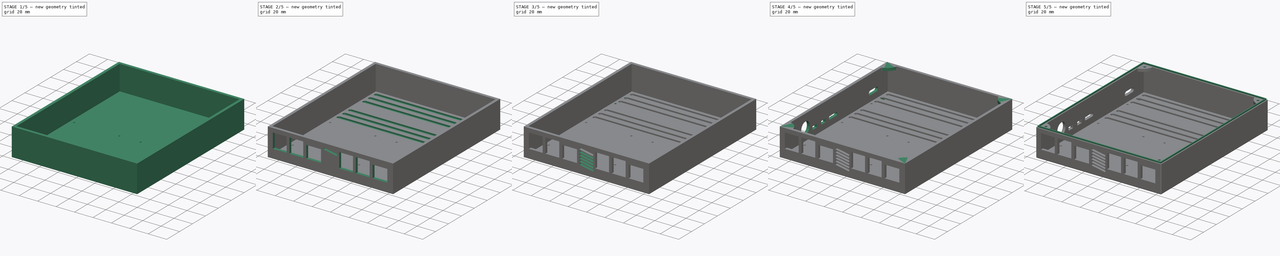
[diagram: build sequence overview — one tinted view per stage of 5, left to right]
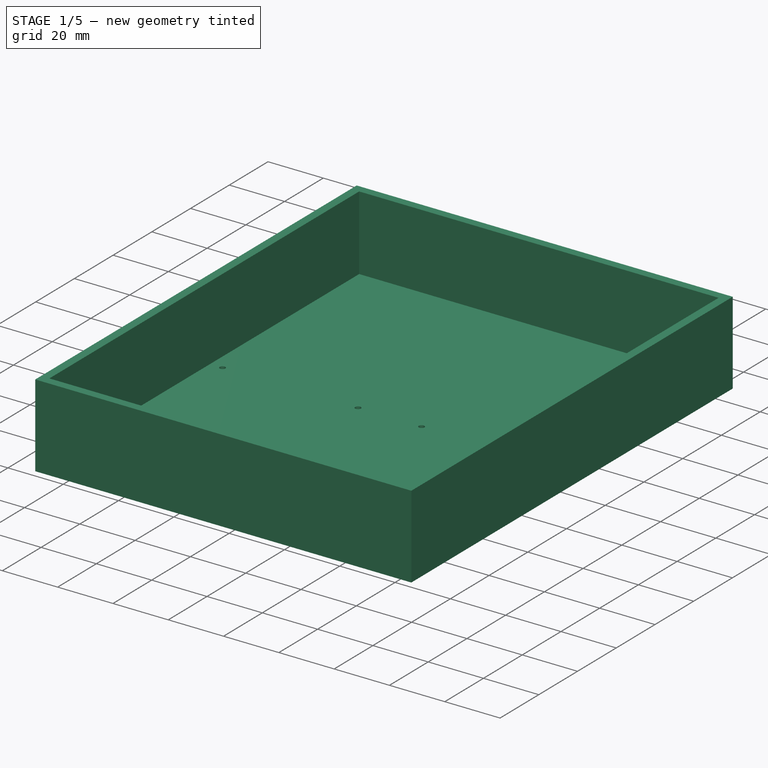
[diagram: stage 1 of 5 — iso view after this stage's code; geometry added in this stage tinted green]
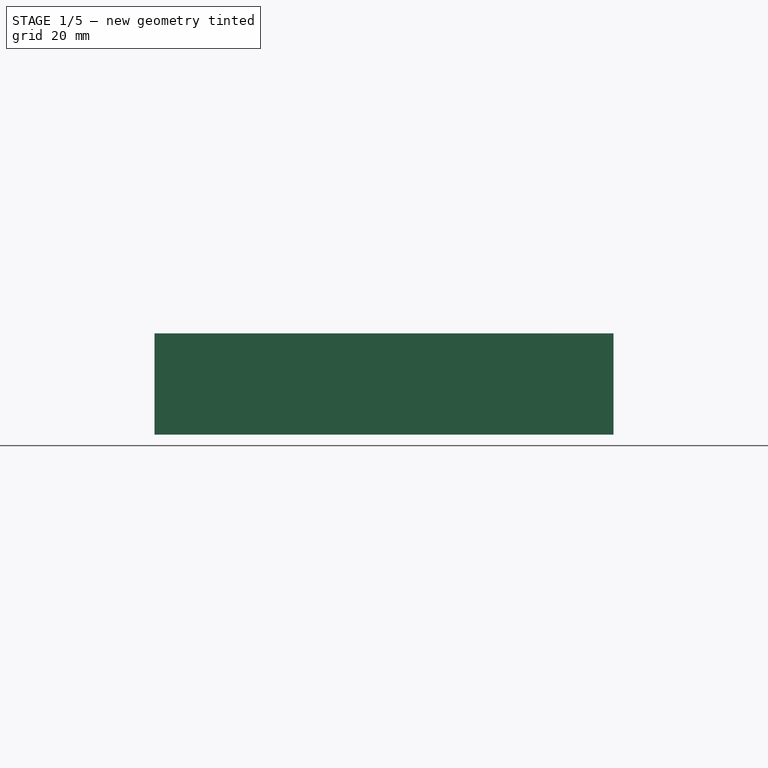
[diagram: stage 1 of 5 — front view after this stage's code; geometry added in this stage tinted green]
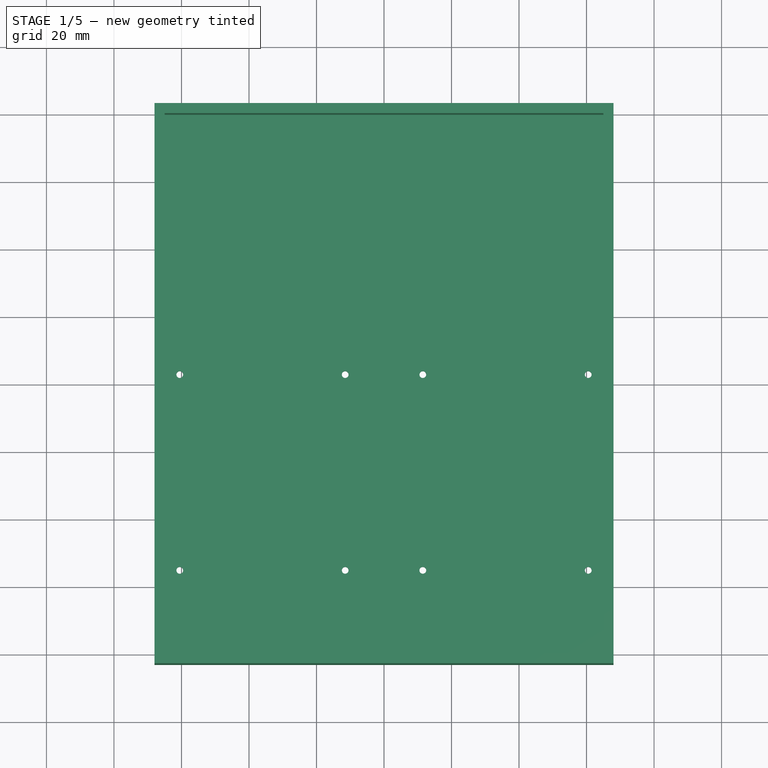
[diagram: stage 1 of 5 — top view after this stage's code; geometry added in this stage tinted green]
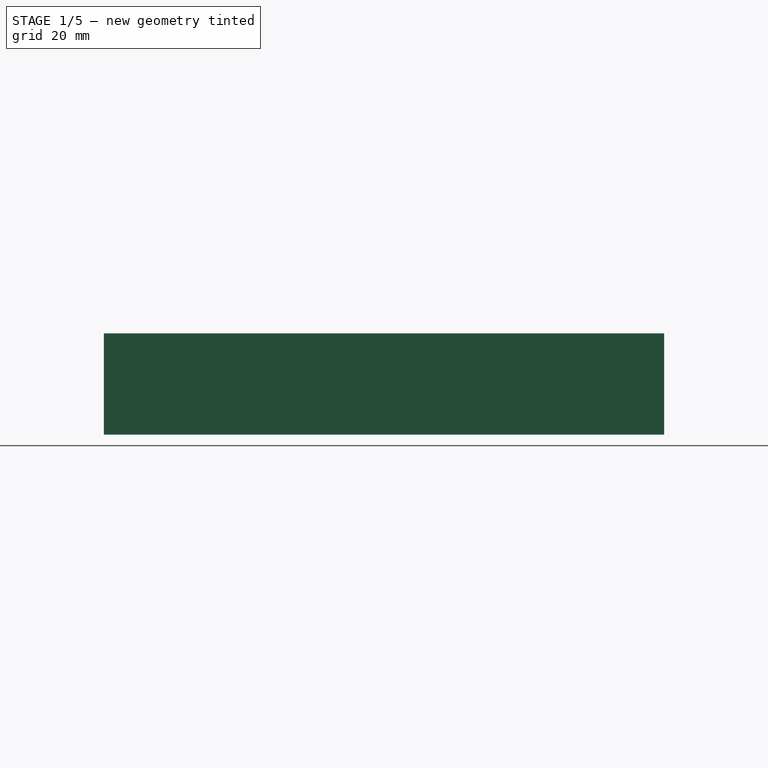
[diagram: stage 1 of 5 — right view after this stage's code; geometry added in this stage tinted green]
FCSTD DOCUMENT  (FreeCAD 0.19R24366 (Git))
Label: DualRPIEnclosure_Bottom
License: All rights reserved
LicenseURL: http://en.wikipedia.org/wiki/All_rights_reserved
objects: Sketcher::SketchObject×12, PartDesign::Pocket×9, PartDesign::Pad×3, PartDesign::LinearPattern×2, PartDesign::Fillet×1, PartDesign::Body×1
note: 41 computed .brp shape members not serialized (recipe doc carries the construction recipe); baked Part::Feature solids carry a one-line shape summary decoded from their .brp

FEATURE [Sketcher::SketchObject] Sketch  label="MainFrame"
  AttachmentOffset = pos=(0,0,30) rot=(0,0,1;0rad)
  FullyConstrained = true
  MapMode = 5
  Placement = pos=(0,0,30) rot=(0,0,1;0rad)
  Support = -> [XY_Plane]
  sketch-geometry (4):
    g0: LineSegment StartX=-65 StartY=80 StartZ=0 EndX=65 EndY=80 EndZ=0
    g1: LineSegment StartX=65 StartY=80 StartZ=0 EndX=65 EndY=-80 EndZ=0
    g2: LineSegment StartX=65 StartY=-80 StartZ=0 EndX=-65 EndY=-80 EndZ=0
    g3: LineSegment StartX=-65 StartY=-80 StartZ=0 EndX=-65 EndY=80 EndZ=0
  constraints (11):
    c: Coincident(g0,g1)
    c: Coincident(g1,g2)
    c: Coincident(g2,g3)
    c: Coincident(g3,g0)
    c: Horizontal(g0)
    c: Horizontal(g2)
    c: Vertical(g1)
    c: Vertical(g3)
    c: DistanceX(g2,g2) = 130
    c: DistanceY(g1,g1) = 160
    c: Symmetric(g0,g1,g-1)
FEATURE [Sketcher::SketchObject] Sketch001  label="EnclosureWall"
  ExternalGeometry = -> [Sketch]
  FullyConstrained = true
  MapMode = 5
  Support = -> [XY_Plane]
  sketch-geometry (4):
    g0: LineSegment StartX=-68 StartY=83 StartZ=0 EndX=68 EndY=83 EndZ=0
    g1: LineSegment StartX=68 StartY=83 StartZ=0 EndX=68 EndY=-83 EndZ=0
    g2: LineSegment StartX=68 StartY=-83 StartZ=0 EndX=-68 EndY=-83 EndZ=0
    g3: LineSegment StartX=-68 StartY=-83 StartZ=0 EndX=-68 EndY=83 EndZ=0
  constraints (12):
    c: Coincident(g0,g1)
    c: Coincident(g1,g2)
    c: Coincident(g2,g3)
    c: Coincident(g3,g0)
    c: Horizontal(g0)
    c: Horizontal(g2)
    c: Vertical(g1)
    c: Vertical(g3)
    c: DistanceX(g-3,g0) = 3
    c: DistanceY(g-3,g0) = 3
    c: DistanceX(g0,g-4) = 3
    c: DistanceY(g2,g-4) = 3
FEATURE [PartDesign::Pad] Pad  label="PadWall"
  Direction = (1,1,1)
  Length = 30
  Length2 = 100
  Profile = -> Sketch001
  Type = 0
FEATURE [PartDesign::Pocket] Pocket  label="MainPocket"
  BaseFeature = -> Pad
  Length = 27
  Length2 = 100
  Profile = -> Sketch
  Type = 0
FEATURE [Sketcher::SketchObject] Sketch002  label="RPIMountHole"
  ExternalGeometry = -> [Pocket]
  FullyConstrained = true
  MapMode = 5
  Placement = pos=(0,0,3) rot=(0,0,1;0rad)
  Support = -> [Pocket]
  sketch-geometry (8):
    g0: Circle CenterX=-60.5 CenterY=-55 CenterZ=0 NormalX=0 NormalY=0 NormalZ=1 AngleXU=0 Radius=1
    g1: Circle CenterX=-11.5 CenterY=-55 CenterZ=0 NormalX=0 NormalY=0 NormalZ=1 AngleXU=0 Radius=1
    g2: Circle CenterX=-60.5 CenterY=3 CenterZ=0 NormalX=0 NormalY=0 NormalZ=1 AngleXU=0 Radius=1
    g3: Circle CenterX=-11.5 CenterY=3 CenterZ=0 NormalX=0 NormalY=0 NormalZ=1 AngleXU=0 Radius=1
    g4: Circle CenterX=11.5 CenterY=-55 CenterZ=0 NormalX=0 NormalY=0 NormalZ=1 AngleXU=0 Radius=1
    g5: Circle CenterX=60.5 CenterY=-55 CenterZ=0 NormalX=0 NormalY=0 NormalZ=1 AngleXU=0 Radius=1
    g6: Circle CenterX=60.5 CenterY=3 CenterZ=0 NormalX=0 NormalY=0 NormalZ=1 AngleXU=0 Radius=1
    g7: Circle CenterX=11.5 CenterY=3 CenterZ=0 NormalX=0 NormalY=0 NormalZ=1 AngleXU=0 Radius=1
  constraints (24):
    c: DistanceX(g-3,g0) = 4.5
    c: DistanceY(g-3,g0) = 25
    c: DistanceX(g0,g1) = 49
    c: Horizontal(g0,g1)
    c: Radius(g0) = 1
    c: Radius(g1) = 1
    c: DistanceY(g0,g2) = 58
    c: Vertical(g2,g0)
    c: DistanceY(g1,g3) = 58
    c: Radius(g2) = 1
    c: Radius(g3) = 1
    c: DistanceX(g2,g3) = 49
    c: DistanceY(g-4,g4) = 25
    c: DistanceX(g4,g5) = 49
    c: DistanceX(g5,g-4) = 4.5
    c: Radius(g4) = 1
    c: Radius(g5) = 1
    c: Horizontal(g5,g4)
    c: DistanceY(g5,g6) = 58
    c: Vertical(g5,g6)
    c: Radius(g6) = 1
    c: DistanceX(g7,g6) = 49
    c: Radius(g7) = 1
    c: Horizontal(g7,g6)
FEATURE [PartDesign::Pocket] Pocket001  label="RPIMountHole001"
  BaseFeature = -> Pocket
  Length = 5
  Length2 = 100
  Profile = -> Sketch002
  Type = 1
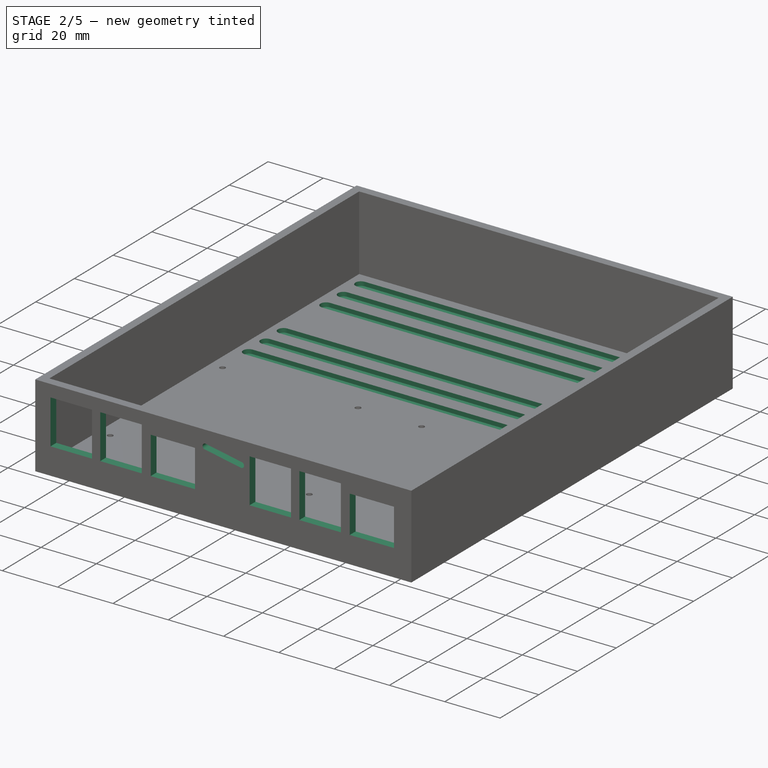
[diagram: stage 2 of 5 — iso view after this stage's code; geometry added in this stage tinted green]
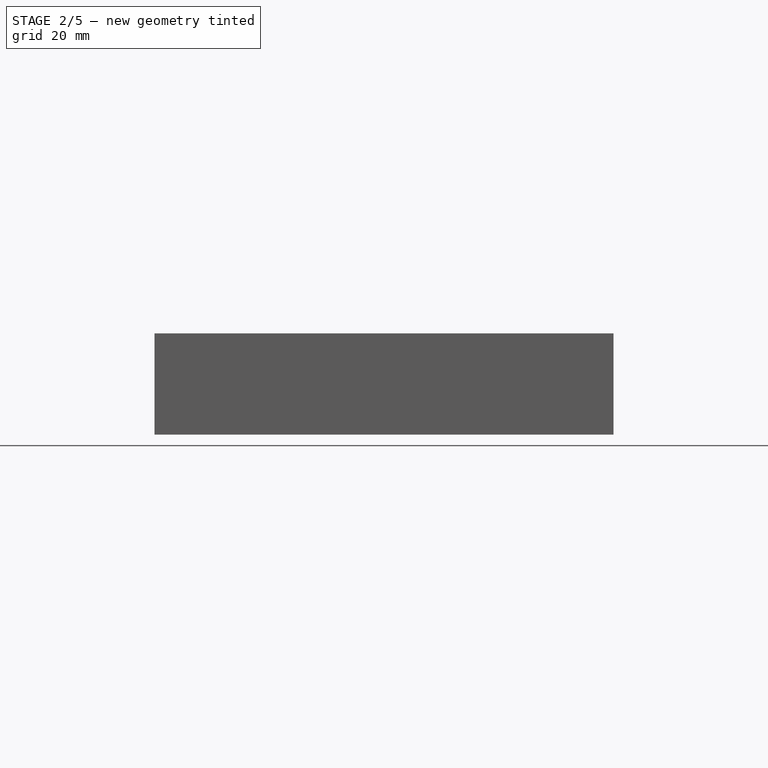
[diagram: stage 2 of 5 — front view after this stage's code; geometry added in this stage tinted green]
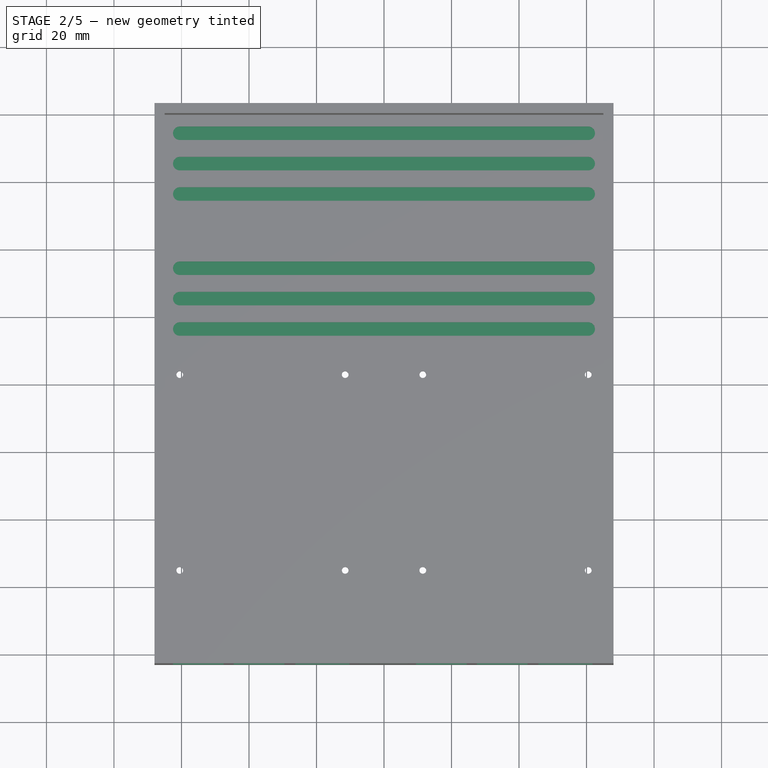
[diagram: stage 2 of 5 — top view after this stage's code; geometry added in this stage tinted green]
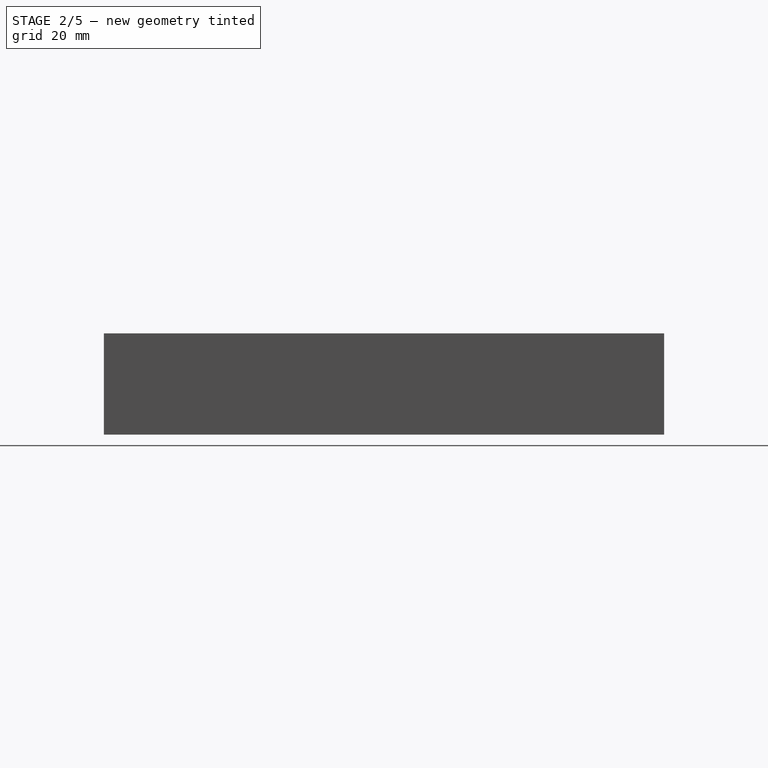
[diagram: stage 2 of 5 — right view after this stage's code; geometry added in this stage tinted green]
FEATURE [Sketcher::SketchObject] Sketch003  label="AuxMountDip"
  ExternalGeometry = -> [Pocket001]
  FullyConstrained = true
  MapMode = 5
  Placement = pos=(0,0,3) rot=(0,0,1;0rad)
  Support = -> [Pocket001]
  sketch-geometry (24):
    g0: ArcOfCircle CenterX=-60.5 CenterY=16.5 CenterZ=0 NormalX=0 NormalY=0 NormalZ=1 AngleXU=0 Radius=2 StartAngle=1.5708 EndAngle=4.71239
    g1: ArcOfCircle CenterX=60.5 CenterY=16.5 CenterZ=0 NormalX=0 NormalY=0 NormalZ=1 AngleXU=0 Radius=2 StartAngle=4.71239 EndAngle=7.85398
    g2: LineSegment StartX=-60.5 StartY=14.5 StartZ=0 EndX=60.5 EndY=14.5 EndZ=0
    g3: LineSegment StartX=-60.5 StartY=18.5 StartZ=0 EndX=60.5 EndY=18.5 EndZ=0
    g4: ArcOfCircle CenterX=-60.5 CenterY=65.5 CenterZ=0 NormalX=0 NormalY=0 NormalZ=1 AngleXU=0 Radius=2 StartAngle=1.5708 EndAngle=4.71239
    g5: ArcOfCircle CenterX=60.5 CenterY=65.5 CenterZ=0 NormalX=0 NormalY=0 NormalZ=1 AngleXU=0 Radius=2 StartAngle=4.71239 EndAngle=7.85398
    g6: LineSegment StartX=-60.5 StartY=63.5 StartZ=0 EndX=60.5 EndY=63.5 EndZ=0
    g7: LineSegment StartX=-60.5 StartY=67.5 StartZ=0 EndX=60.5 EndY=67.5 EndZ=0
    g8: ArcOfCircle CenterX=-60.5 CenterY=74.5 CenterZ=0 NormalX=0 NormalY=0 NormalZ=1 AngleXU=0 Radius=2 StartAngle=1.5708 EndAngle=4.71239
    g9: ArcOfCircle CenterX=60.5 CenterY=74.5 CenterZ=0 NormalX=0 NormalY=0 NormalZ=1 AngleXU=0 Radius=2 StartAngle=4.71239 EndAngle=7.85398
    g10: LineSegment StartX=-60.5 StartY=72.5 StartZ=0 EndX=60.5 EndY=72.5 EndZ=0
    g11: LineSegment StartX=-60.5 StartY=76.5 StartZ=0 EndX=60.5 EndY=76.5 EndZ=0
    g12: ArcOfCircle CenterX=-60.5 CenterY=25.5 CenterZ=0 NormalX=0 NormalY=0 NormalZ=1 AngleXU=0 Radius=2 StartAngle=1.5708 EndAngle=4.71239
    g13: ArcOfCircle CenterX=60.5 CenterY=25.5 CenterZ=0 NormalX=0 NormalY=0 NormalZ=1 AngleXU=0 Radius=2 StartAngle=4.71239 EndAngle=7.85398
    g14: LineSegment StartX=-60.5 StartY=23.5 StartZ=0 EndX=60.5 EndY=23.5 EndZ=0
    g15: LineSegment StartX=-60.5 StartY=27.5 StartZ=0 EndX=60.5 EndY=27.5 EndZ=0
    g16: ArcOfCircle CenterX=-60.5 CenterY=34.5 CenterZ=0 NormalX=0 NormalY=0 NormalZ=1 AngleXU=0 Radius=2 StartAngle=1.5708 EndAngle=4.71239
    g17: ArcOfCircle CenterX=60.5 CenterY=34.5 CenterZ=0 NormalX=0 NormalY=0 NormalZ=1 AngleXU=0 Radius=2 StartAngle=4.71239 EndAngle=7.85398
    g18: LineSegment StartX=-60.5 StartY=32.5 StartZ=0 EndX=60.5 EndY=32.5 EndZ=0
    g19: LineSegment StartX=-60.5 StartY=36.5 StartZ=0 EndX=60.5 EndY=36.5 EndZ=0
    g20: ArcOfCircle CenterX=-60.5 CenterY=56.5 CenterZ=0 NormalX=0 NormalY=0 NormalZ=1 AngleXU=0 Radius=2 StartAngle=1.5708 EndAngle=4.71239
    g21: ArcOfCircle CenterX=60.5 CenterY=56.5 CenterZ=0 NormalX=0 NormalY=0 NormalZ=1 AngleXU=0 Radius=2 StartAngle=4.71239 EndAngle=7.85398
    g22: LineSegment StartX=-60.5 StartY=54.5 StartZ=0 EndX=60.5 EndY=54.5 EndZ=0
    g23: LineSegment StartX=-60.5 StartY=58.5 StartZ=0 EndX=60.5 EndY=58.5 EndZ=0
  constraints (61):
    c: Tangent(g0,g3) = 1.5708
    c: Tangent(g0,g2) = -1.5708
    c: Tangent(g2,g1) = -1.5708
    c: Tangent(g3,g1) = 1.5708
    c: Horizontal(g2)
    c: Equal(g0,g1)
    c: DistanceY(g-5,g0) = 13.5
    c: Vertical(g0,g-5)
    c: Vertical(g1,g-6)
    c: Radius(g0) = 2
    c: Tangent(g4,g7) = 1.5708
    c: Tangent(g4,g6) = -1.5708
    c: Tangent(g6,g5) = -1.5708
    c: Tangent(g7,g5) = 1.5708
    c: Horizontal(g6)
    c: Equal(g4,g5)
    c: Vertical(g4,g0)
    c: Vertical(g5,g1)
    c: Radius(g4) = 2
    c: DistanceY(g0,g4) = 49
    c: Tangent(g8,g11) = 1.5708
    c: Tangent(g8,g10) = -1.5708
    c: Tangent(g10,g9) = -1.5708
    c: Tangent(g11,g9) = 1.5708
    c: Horizontal(g10)
    c: Equal(g8,g9)
    c: Vertical(g8,g4)
    c: Vertical(g9,g5)
    c: Radius(g8) = 2
    c: DistanceY(g0,g8) = 58
    c: DistanceY(g9,g-4) = 3.5
    c: Tangent(g12,g15) = 1.5708
    c: Tangent(g12,g14) = -1.5708
    c: Tangent(g14,g13) = -1.5708
    c: Tangent(g15,g13) = 1.5708
    c: Horizontal(g14)
    c: Equal(g12,g13)
    c: Tangent(g16,g19) = 1.5708
    c: Tangent(g16,g18) = -1.5708
    c: Tangent(g18,g17) = -1.5708
    c: Tangent(g19,g17) = 1.5708
    c: Horizontal(g18)
    c: Equal(g16,g17)
    c: Tangent(g20,g23) = 1.5708
    c: Tangent(g20,g22) = -1.5708
    c: Tangent(g22,g21) = -1.5708
    c: Tangent(g23,g21) = 1.5708
    c: Horizontal(g22)
    c: Equal(g20,g21)
    c: Vertical(g0,g12)
    c: Vertical(g12,g16)
    c: Vertical(g16,g20)
    c: Vertical(g21,g17)
    c: Vertical(g17,g13)
    c: Equal(g20,g16)
    c: Equal(g20,g12)
    c: Radius(g20) = 2
    c: DistanceY(g1,g13) = 9
    c: DistanceY(g13,g17) = 9
    c: DistanceY(g21,g5) = 9
    c: Vertical(g5,g21)
FEATURE [PartDesign::Pocket] Pocket002  label="PocketAuxMountDip"
  BaseFeature = -> Pocket001
  Length = 1.5
  Length2 = 100
  Profile = -> Sketch003
  Type = 0
FEATURE [Sketcher::SketchObject] Sketch004  label="ConnectorSide"
  ExternalGeometry = -> [Pocket002]
  FullyConstrained = true
  MapMode = 5
  Placement = pos=(0,-83,0) rot=(1,0,0;1.5708rad)
  Support = -> [Pocket002]
  sketch-geometry (38):
    g0: LineSegment StartX=-65 StartY=9.6 StartZ=0 EndX=65 EndY=9.6 EndZ=0
    g1: LineSegment StartX=65 StartY=9.6 StartZ=0 EndX=65 EndY=8 EndZ=0
    g2: LineSegment StartX=65 StartY=8 StartZ=0 EndX=-65 EndY=8 EndZ=0
    g3: LineSegment StartX=-65 StartY=8 StartZ=0 EndX=-65 EndY=9.6 EndZ=0
    g4: LineSegment StartX=-62.5 StartY=25.6 StartZ=0 EndX=-47.5 EndY=25.6 EndZ=0
    g5: LineSegment StartX=-47.5 StartY=25.6 StartZ=0 EndX=-47.5 EndY=9.6 EndZ=0
    g6: LineSegment StartX=-47.5 StartY=9.6 StartZ=0 EndX=-62.5 EndY=9.6 EndZ=0
    g7: LineSegment StartX=-62.5 StartY=9.6 StartZ=0 EndX=-62.5 EndY=25.6 EndZ=0
    g8: LineSegment StartX=-29.5 StartY=25.6 StartZ=0 EndX=-44.5 EndY=25.6 EndZ=0
    g9: LineSegment StartX=-44.5 StartY=25.6 StartZ=0 EndX=-44.5 EndY=9.6 EndZ=0
    g10: LineSegment StartX=-44.5 StartY=9.6 StartZ=0 EndX=-29.5 EndY=9.6 EndZ=0
    g11: LineSegment StartX=-29.5 StartY=9.6 StartZ=0 EndX=-29.5 EndY=25.6 EndZ=0
    g12: LineSegment StartX=-26.25 StartY=23.1 StartZ=0 EndX=-10.25 EndY=23.1 EndZ=0
    g13: LineSegment StartX=-10.25 StartY=23.1 StartZ=0 EndX=-10.25 EndY=9.6 EndZ=0
    g14: LineSegment StartX=-10.25 StartY=9.6 StartZ=0 EndX=-26.25 EndY=9.6 EndZ=0
    g15: LineSegment StartX=-26.25 StartY=9.6 StartZ=0 EndX=-26.25 EndY=23.1 EndZ=0
    g16: LineSegment StartX=9.5 StartY=25.6 StartZ=0 EndX=24.5 EndY=25.6 EndZ=0
    g17: LineSegment StartX=24.5 StartY=25.6 StartZ=0 EndX=24.5 EndY=9.6 EndZ=0
    g18: LineSegment StartX=24.5 StartY=9.6 StartZ=0 EndX=9.5 EndY=9.6 EndZ=0
    g19: LineSegment StartX=9.5 StartY=9.6 StartZ=0 EndX=9.5 EndY=25.6 EndZ=0
    g20: LineSegment StartX=42.5 StartY=25.6 StartZ=0 EndX=27.5 EndY=25.6 EndZ=0
    g21: LineSegment StartX=27.5 StartY=25.6 StartZ=0 EndX=27.5 EndY=9.6 EndZ=0
    g22: LineSegment StartX=27.5 StartY=9.6 StartZ=0 EndX=42.5 EndY=9.6 EndZ=0
    g23: LineSegment StartX=42.5 StartY=9.6 StartZ=0 EndX=42.5 EndY=25.6 EndZ=0
    g24: LineSegment StartX=45.75 StartY=23.1 StartZ=0 EndX=61.75 EndY=23.1 EndZ=0
    g25: LineSegment StartX=61.75 StartY=23.1 StartZ=0 EndX=61.75 EndY=9.6 EndZ=0
    g26: LineSegment StartX=61.75 StartY=9.6 StartZ=0 EndX=45.75 EndY=9.6 EndZ=0
    g27: LineSegment StartX=45.75 StartY=9.6 StartZ=0 EndX=45.75 EndY=23.1 EndZ=0
    g28: GeomPoint X=-55 Y=9.6 Z=0
    g29: GeomPoint X=-37 Y=9.6 Z=0
    g30: GeomPoint X=-18.25 Y=9.6 Z=0
    g31: GeomPoint X=17 Y=9.6 Z=0
    g32: GeomPoint X=35 Y=9.6 Z=0
    g33: GeomPoint X=53.75 Y=9.6 Z=0
    g34: GeomPoint X=-60.5 Y=3 Z=0
    g35: GeomPoint X=-64 Y=9.6 Z=0
    g36: GeomPoint X=11.5 Y=3 Z=0
    g37: GeomPoint X=8 Y=9.6 Z=0
  constraints (96):
    c: Coincident(g0,g1)
    c: Coincident(g1,g2)
    c: Coincident(g2,g3)
    c: Coincident(g3,g0)
    c: Horizontal(g0)
    c: Horizontal(g2)
    c: Vertical(g1)
    c: Vertical(g3)
    c: DistanceY(g3,g3) = 1.6
    c: PointOnObject(g1,g-4)
    c: PointOnObject(g2,g-3)
    c: DistanceY(g-3,g2) = 5
    c: Coincident(g4,g5)
    c: Coincident(g5,g6)
    c: Coincident(g6,g7)
    c: Coincident(g7,g4)
    c: Horizontal(g4)
    c: Horizontal(g6)
    c: Vertical(g5)
    c: Vertical(g7)
    c: Coincident(g8,g9)
    c: Coincident(g9,g10)
    c: Coincident(g10,g11)
    c: Coincident(g11,g8)
    c: Horizontal(g8)
    c: Horizontal(g10)
    c: Vertical(g9)
    c: Vertical(g11)
    c: Coincident(g12,g13)
    c: Coincident(g13,g14)
    c: Coincident(g14,g15)
    c: Coincident(g15,g12)
    c: Horizontal(g12)
    c: Horizontal(g14)
    c: Vertical(g13)
    c: Vertical(g15)
    c: Coincident(g16,g17)
    c: Coincident(g17,g18)
    c: Coincident(g18,g19)
    c: Coincident(g19,g16)
    c: Horizontal(g16)
    c: Horizontal(g18)
    c: Vertical(g17)
    c: Vertical(g19)
    c: Coincident(g20,g21)
    c: Coincident(g21,g22)
    c: Coincident(g22,g23)
    c: Coincident(g23,g20)
    c: Horizontal(g20)
    c: Horizontal(g22)
    c: Vertical(g21)
    c: Vertical(g23)
    c: Coincident(g24,g25)
    c: Coincident(g25,g26)
    c: Coincident(g26,g27)
    c: Coincident(g27,g24)
    c: Horizontal(g24)
    c: Horizontal(g26)
    c: Vertical(g25)
    c: Vertical(g27)
    c: PointOnObject(g28,g0)
    c: PointOnObject(g29,g0)
    c: PointOnObject(g30,g0)
    c: PointOnObject(g31,g0)
    c: PointOnObject(g32,g0)
    c: PointOnObject(g33,g0)
    c: Symmetric(g-5,g-5,g34)
    c: PointOnObject(g35,g0)
    c: DistanceX(g35,g34) = 3.5
    c: DistanceX(g35,g28) = 9
    c: DistanceX(g35,g29) = 27
    c: DistanceX(g35,g30) = 45.75
    c: Symmetric(g6,g5,g28)
    c: Symmetric(g10,g9,g29)
    c: Symmetric(g14,g13,g30)
    c: DistanceY(g7,g7) = 16
    c: DistanceX(g4,g4) = 15
    c: Equal(g9,g5)
    c: Equal(g4,g8)
    c: DistanceX(g12,g12) = 16
    c: DistanceY(g13,g13) = 13.5
    c: Symmetric(g-7,g-7,g36)
    c: PointOnObject(g37,g0)
    c: DistanceX(g37,g36) = 3.5
    c: Symmetric(g17,g18,g31)
    c: DistanceX(g37,g31) = 9
    c: Symmetric(g22,g21,g32)
    c: DistanceX(g37,g32) = 27
    c: DistanceX(g37,g33) = 45.75
    c: Equal(g17,g5)
    c: Equal(g16,g4)
    c: Equal(g21,g11)
    c: Equal(g20,g8)
    c: Symmetric(g25,g26,g33)
    c: Equal(g27,g15)
    c: Equal(g24,g12)
FEATURE [PartDesign::Pocket] Pocket003  label="PocketConnector"
  BaseFeature = -> Pocket002
  Length = 0
  Length2 = 100
  Profile = -> Sketch004
  Type = 2
FEATURE [Sketcher::SketchObject] Sketch005  label="VentConnectorSide"
  ExternalGeometry = -> [Pocket003]
  FullyConstrained = true
  MapMode = 5
  Placement = pos=(0,-83,0) rot=(1,0,0;1.5708rad)
  Support = -> [Pocket003]
  sketch-geometry (9):
    g0: LineSegment StartX=-6.5 StartY=26 StartZ=0 EndX=6.5 EndY=26 EndZ=0
    g1: LineSegment StartX=6.5 StartY=26 StartZ=0 EndX=6.5 EndY=6 EndZ=0
    g2: LineSegment StartX=6.5 StartY=6 StartZ=0 EndX=-6.5 EndY=6 EndZ=0
    g3: LineSegment StartX=-6.5 StartY=6 StartZ=0 EndX=-6.5 EndY=26 EndZ=0
    g4: GeomPoint X=0 Y=26 Z=0
    g5: LineSegment StartX=-6.5 StartY=25.5 StartZ=0 EndX=6.5 EndY=23 EndZ=0
    g6: LineSegment StartX=6.5 StartY=21 StartZ=0 EndX=-6.5 EndY=23.5 EndZ=0
    g7: ArcOfCircle CenterX=-6.5 CenterY=24.5 CenterZ=0 NormalX=0 NormalY=0 NormalZ=1 AngleXU=0 Radius=1 StartAngle=1.5708 EndAngle=4.71239
    g8: ArcOfCircle CenterX=6.49999 CenterY=22 CenterZ=0 NormalX=0 NormalY=0 NormalZ=1 AngleXU=0 Radius=1 StartAngle=4.71239 EndAngle=7.85398
  constraints (27):
    c: Coincident(g0,g1)
    c: Coincident(g1,g2)
    c: Coincident(g2,g3)
    c: Coincident(g3,g0)
    c: Horizontal(g0)
    c: Horizontal(g2)
    c: Vertical(g1)
    c: Vertical(g3)
    c: Symmetric(g0,g0,g4)
    c: PointOnObject(g4,g-2)
    c: DistanceX(g0,g0) = 13
    c: DistanceY(g0,g-4) = 4
    c: DistanceY(g3,g3) = 20
    c: PointOnObject(g5,g3)
    c: PointOnObject(g5,g1)
    c: PointOnObject(g6,g1)
    c: PointOnObject(g6,g3)
    c: Coincident(g7,g6)
    c: Coincident(g7,g5)
    c: Coincident(g8,g6)
    c: Coincident(g8,g5)
    c: DistanceY(g5,g0) = 0.5
    c: Radius(g7) = 1
    c: Radius(g8) = 1
    c: DistanceY(g5,g0) = 3
    c: DistanceY(g6,g5) = 2
    c: DistanceY(g6,g5) = 2
FEATURE [PartDesign::Pocket] Pocket004  label="VentFront"
  BaseFeature = -> Pocket003
  Length = 5
  Length2 = 100
  Profile = -> Sketch005
  Type = 2
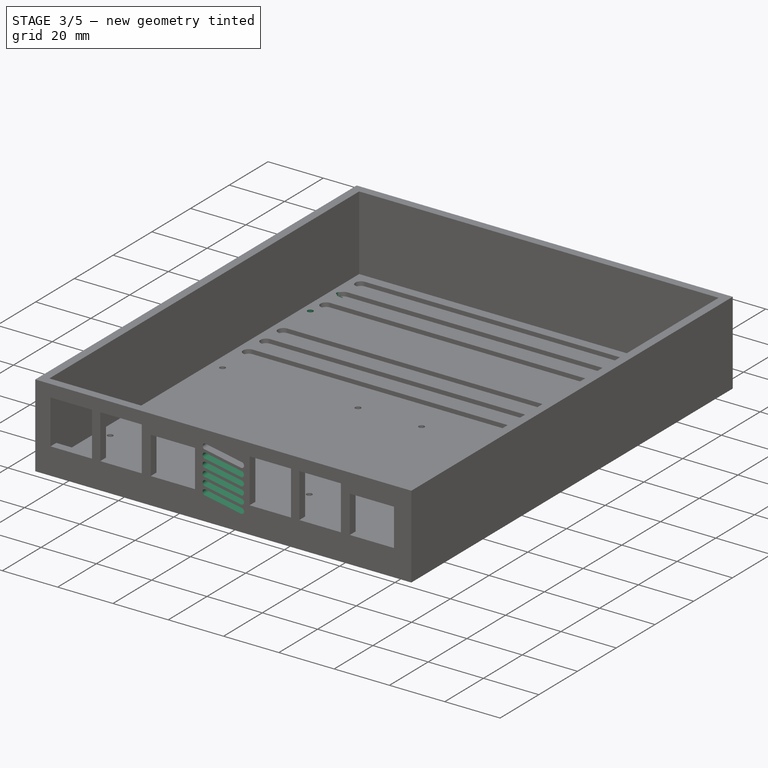
[diagram: stage 3 of 5 — iso view after this stage's code; geometry added in this stage tinted green]
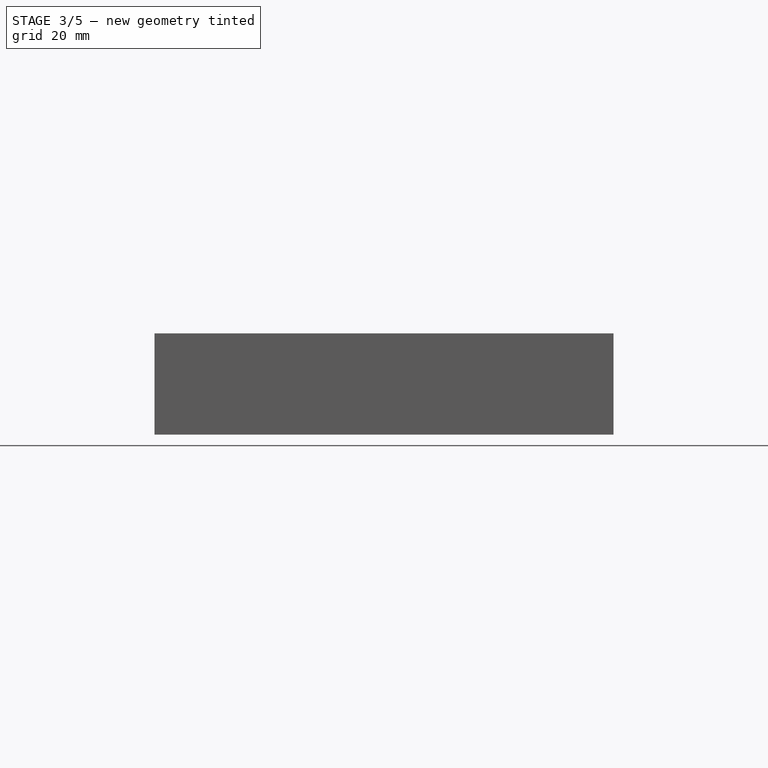
[diagram: stage 3 of 5 — front view after this stage's code; geometry added in this stage tinted green]
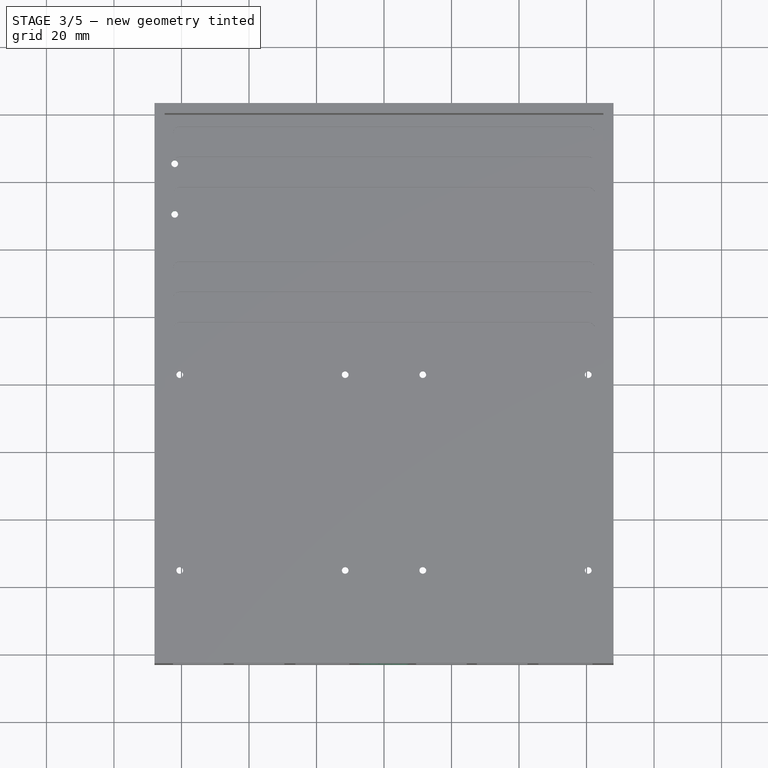
[diagram: stage 3 of 5 — top view after this stage's code; geometry added in this stage tinted green]
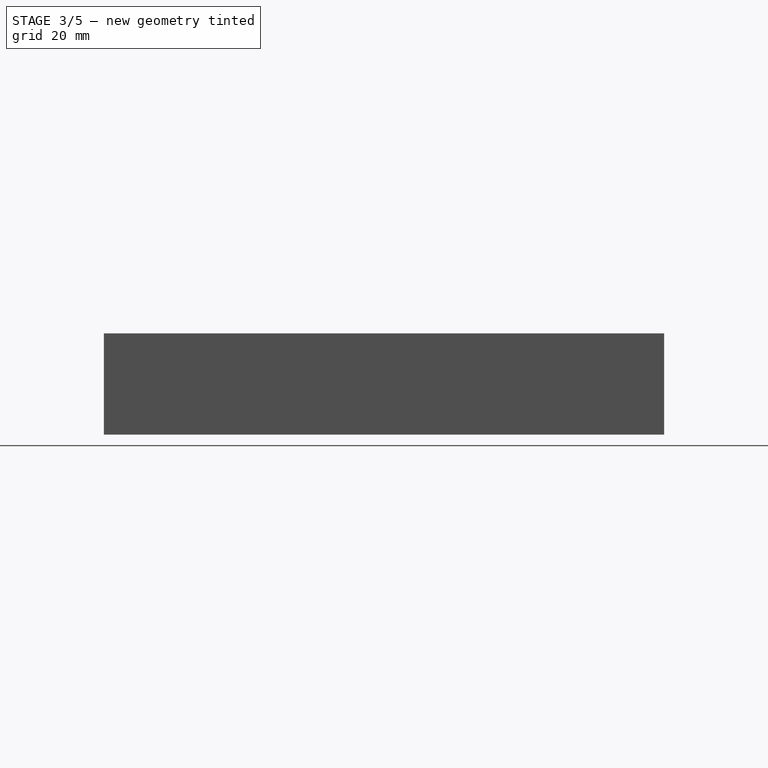
[diagram: stage 3 of 5 — right view after this stage's code; geometry added in this stage tinted green]
FEATURE [PartDesign::LinearPattern] LinearPattern
  BaseFeature = -> Pocket004
  Direction = -> Z_Axis
  Length = 15
  Occurrences = 6
  Originals = -> [Pocket004]
  Reversed = true
FEATURE [Sketcher::SketchObject] Sketch006  label="ConnectorLeft"
  ExternalGeometry = -> [LinearPattern]
  FullyConstrained = true
  MapMode = 5
  Placement = pos=(-68,0,0) rot=(0.57735,-0.57735,-0.57735;2.0944rad)
  Support = -> [LinearPattern]
  sketch-geometry (32):
    g0: LineSegment StartX=-6.5 StartY=9.6 StartZ=0 EndX=78.5 EndY=9.6 EndZ=0
    g1: LineSegment StartX=78.5 StartY=9.6 StartZ=0 EndX=78.5 EndY=8 EndZ=0
    g2: LineSegment StartX=78.5 StartY=8 StartZ=0 EndX=-6.5 EndY=8 EndZ=0
    g3: LineSegment StartX=-6.5 StartY=8 StartZ=0 EndX=-6.5 EndY=9.6 EndZ=0
    g4: GeomPoint X=55 Y=3 Z=0
    g5: GeomPoint X=-3 Y=3 Z=0
    g6: ArcOfCircle CenterX=-0.05 CenterY=11.35 CenterZ=0 NormalX=0 NormalY=0 NormalZ=1 AngleXU=0 Radius=1.75 StartAngle=1.5708 EndAngle=4.71239
    g7: ArcOfCircle CenterX=9.45 CenterY=11.35 CenterZ=0 NormalX=0 NormalY=0 NormalZ=1 AngleXU=0 Radius=1.75 StartAngle=4.71239 EndAngle=7.85398
    g8: LineSegment StartX=-0.05 StartY=9.6 StartZ=0 EndX=9.45 EndY=9.6 EndZ=0
    g9: LineSegment StartX=-0.05 StartY=13.1 StartZ=0 EndX=9.45 EndY=13.1 EndZ=0
    g10: LineSegment StartX=23 StartY=13.1 StartZ=0 EndX=16 EndY=13.1 EndZ=0
    g11: LineSegment StartX=16 StartY=13.1 StartZ=0 EndX=16 EndY=9.6 EndZ=0
    g12: LineSegment StartX=16 StartY=9.6 StartZ=0 EndX=23 EndY=9.6 EndZ=0
    g13: LineSegment StartX=23 StartY=9.6 StartZ=0 EndX=23 EndY=13.1 EndZ=0
    g14: LineSegment StartX=29.5 StartY=13.1 StartZ=0 EndX=36.5 EndY=13.1 EndZ=0
    g15: LineSegment StartX=36.5 StartY=13.1 StartZ=0 EndX=36.5 EndY=9.6 EndZ=0
    g16: LineSegment StartX=36.5 StartY=9.6 StartZ=0 EndX=29.5 EndY=9.6 EndZ=0
    g17: LineSegment StartX=29.5 StartY=9.6 StartZ=0 EndX=29.5 EndY=13.1 EndZ=0
    g18: GeomPoint X=4.7 Y=9.6 Z=0
    g19: GeomPoint X=19.5 Y=9.6 Z=0
    g20: GeomPoint X=33 Y=9.6 Z=0
    g21: Circle CenterX=47.5 CenterY=15.6 CenterZ=0 NormalX=0 NormalY=0 NormalZ=1 AngleXU=0 Radius=6.5
    g22: LineSegment StartX=-68 StartY=9.6 StartZ=0 EndX=-47.5 EndY=9.6 EndZ=0
    g23: LineSegment StartX=-47.5 StartY=9.6 StartZ=0 EndX=-47.5 EndY=8 EndZ=0
    g24: LineSegment StartX=-47.5 StartY=8 StartZ=0 EndX=-68 EndY=8 EndZ=0
    g25: LineSegment StartX=-68 StartY=8 StartZ=0 EndX=-68 EndY=9.6 EndZ=0
    g26: GeomPoint X=-65.5 Y=3 Z=0
    g27: GeomPoint X=-57.75 Y=9.6 Z=0
    g28: ArcOfCircle CenterX=-62.5 CenterY=11.85 CenterZ=0 NormalX=0 NormalY=0 NormalZ=1 AngleXU=0 Radius=2.25 StartAngle=1.5708 EndAngle=4.71239
    g29: ArcOfCircle CenterX=-53 CenterY=11.85 CenterZ=0 NormalX=0 NormalY=0 NormalZ=1 AngleXU=0 Radius=2.25 StartAngle=4.71239 EndAngle=7.85398
    g30: LineSegment StartX=-62.5 StartY=9.6 StartZ=0 EndX=-53 EndY=9.6 EndZ=0
    g31: LineSegment StartX=-62.5 StartY=14.1 StartZ=0 EndX=-53 EndY=14.1 EndZ=0
  constraints (79):
    c: DistanceX(g-4,g-3) = 24
    c: DistanceX(g-4,g-4) = 2
    c: Coincident(g0,g1)
    c: Coincident(g1,g2)
    c: Coincident(g2,g3)
    c: Coincident(g3,g0)
    c: Horizontal(g0)
    c: Horizontal(g2)
    c: Vertical(g1)
    c: Vertical(g3)
    c: DistanceY(g1,g0) = 1.6
    c: DistanceX(g0,g0) = 85
    c: DistanceY(g-4,g1) = 5
    c: Symmetric(g-4,g-4,g4)
    c: DistanceX(g4,g1) = 23.5
    c: Symmetric(g-5,g-5,g5)
    c: Tangent(g6,g9) = 1.5708
    c: Tangent(g6,g8) = -1.5708
    c: Tangent(g8,g7) = -1.5708
    c: Tangent(g9,g7) = 1.5708
    c: Horizontal(g8)
    c: Equal(g6,g7)
    c: Tangent(g7,g0)
    c: Coincident(g10,g11)
    c: Coincident(g11,g12)
    c: Coincident(g12,g13)
    c: Coincident(g13,g10)
    c: Horizontal(g10)
    c: Horizontal(g12)
    c: Vertical(g11)
    c: Vertical(g13)
    c: PointOnObject(g11,g0)
    c: Coincident(g14,g15)
    c: Coincident(g15,g16)
    c: Coincident(g16,g17)
    c: Coincident(g17,g14)
    c: Horizontal(g14)
    c: Horizontal(g16)
    c: Vertical(g15)
    c: Vertical(g17)
    c: PointOnObject(g15,g0)
    c: Symmetric(g6,g7,g18)
    c: Symmetric(g12,g11,g19)
    c: Symmetric(g16,g15,g20)
    c: DistanceX(g5,g18) = 7.7
    c: DistanceY(g6,g6) = 3.5
    c: DistanceX(g9,g9) = 9.5
    c: DistanceX(g18,g19) = 14.8
    c: DistanceX(g10,g10) = 7
    c: DistanceY(g13,g13) = 3.5
    c: DistanceX(g19,g20) = 13.5
    c: DistanceX(g14,g14) = 7
    c: DistanceX(g20,g21) = 14.5
    c: Radius(g21) = 6.5
    c: DistanceY(g0,g21) = 6
    c: DistanceY(g15,g14) = 3.5
    c: Coincident(g22,g23)
    c: Coincident(g23,g24)
    c: Coincident(g24,g25)
    c: Coincident(g25,g22)
    c: Horizontal(g22)
    c: Horizontal(g24)
    c: Vertical(g23)
    c: Vertical(g25)
    c: Symmetric(g-6,g-6,g26)
    c: DistanceY(g-6,g24) = 5
    c: DistanceY(g24,g22) = 1.6
    c: DistanceX(g24,g24) = 20.5
    c: Symmetric(g22,g22,g27)
    c: DistanceX(g24,g26) = 2.5
    c: Tangent(g28,g31) = 1.5708
    c: Tangent(g28,g30) = -1.5708
    c: Tangent(g30,g29) = -1.5708
    c: Tangent(g31,g29) = 1.5708
    c: Horizontal(g30)
    c: Equal(g28,g29)
    c: Symmetric(g28,g29,g27)
    c: DistanceY(g29,g29) = 4.5
    c: DistanceX(g28,g29) = 9.5
FEATURE [Sketcher::SketchObject] Sketch007  label="USBC_2nd_Power"
  ExternalGeometry = -> [LinearPattern]
  FullyConstrained = true
  MapMode = 5
  Placement = pos=(0,0,3) rot=(0,0,1;0rad)
  Support = -> [LinearPattern]
  sketch-geometry (2):
    g0: GeomPoint X=-60.5 Y=65.5 Z=0
    g1: Circle CenterX=-62 CenterY=50.5 CenterZ=0 NormalX=0 NormalY=0 NormalZ=1 AngleXU=0 Radius=1
  constraints (4):
    c: Symmetric(g-3,g-4,g0)
    c: DistanceY(g1,g0) = 15
    c: Radius(g1) = 1
    c: DistanceX(g-5,g1) = 3
FEATURE [PartDesign::Pocket] Pocket005  label="USBC_2Power"
  BaseFeature = -> LinearPattern
  Length = 5
  Length2 = 100
  Profile = -> Sketch007
  Type = 1
FEATURE [PartDesign::LinearPattern] LinearPattern001  label="2_USBC_PCB_Hole"
  BaseFeature = -> Pocket005
  Direction = -> Sketch007 [V_Axis]
  Length = 15
  Occurrences = 2
  Originals = -> [Pocket005]
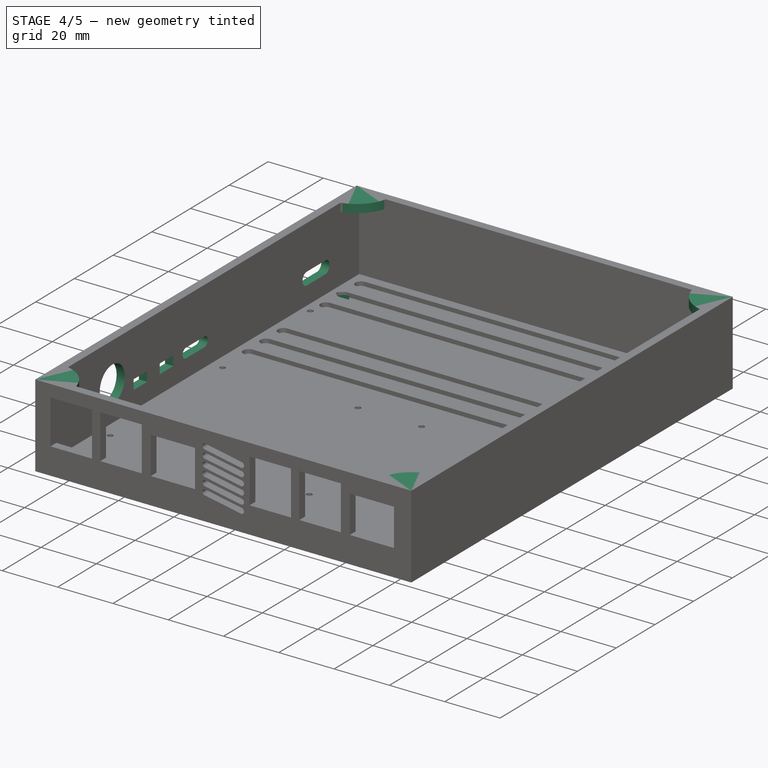
[diagram: stage 4 of 5 — iso view after this stage's code; geometry added in this stage tinted green]
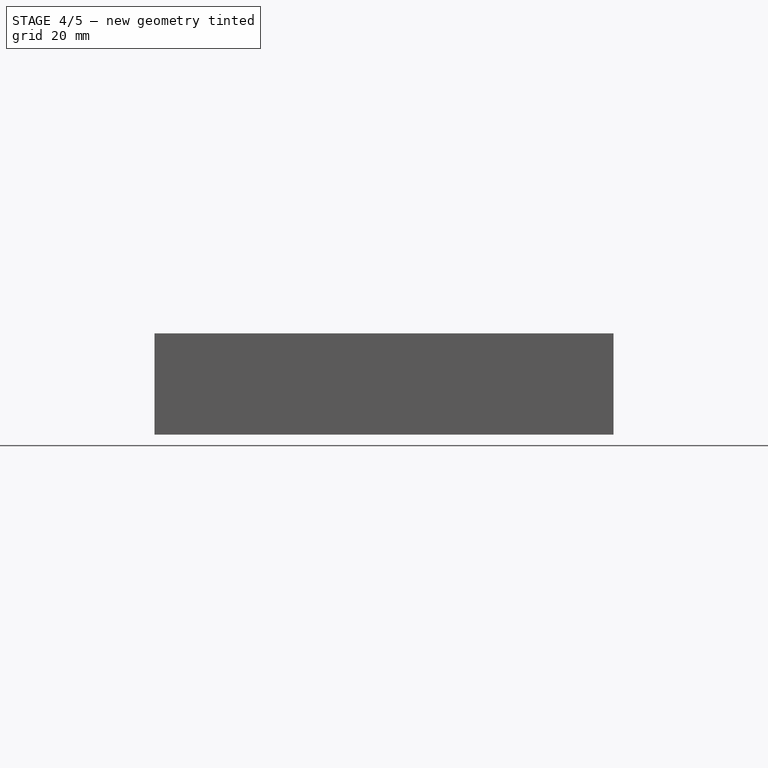
[diagram: stage 4 of 5 — front view after this stage's code; geometry added in this stage tinted green]
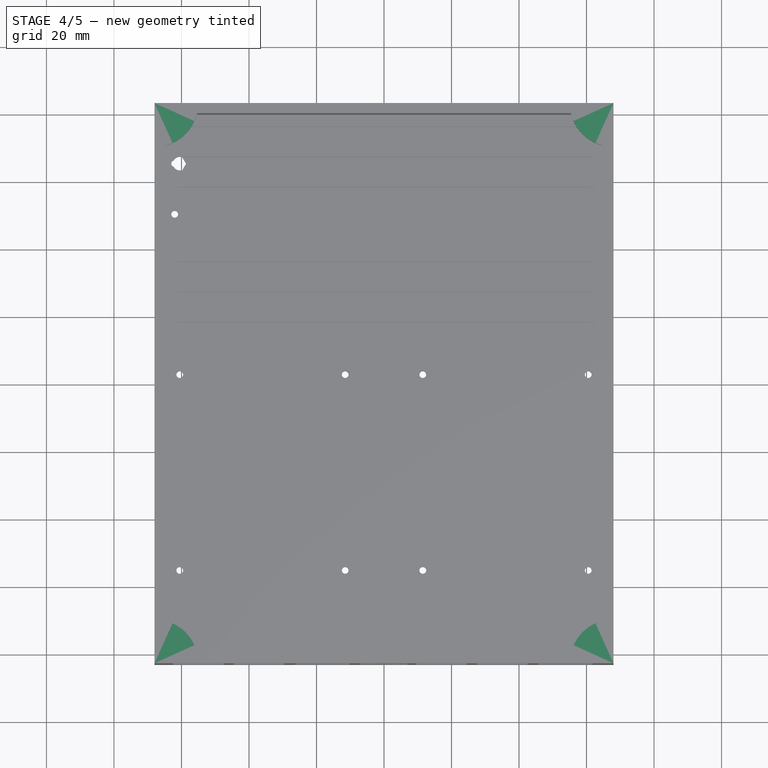
[diagram: stage 4 of 5 — top view after this stage's code; geometry added in this stage tinted green]
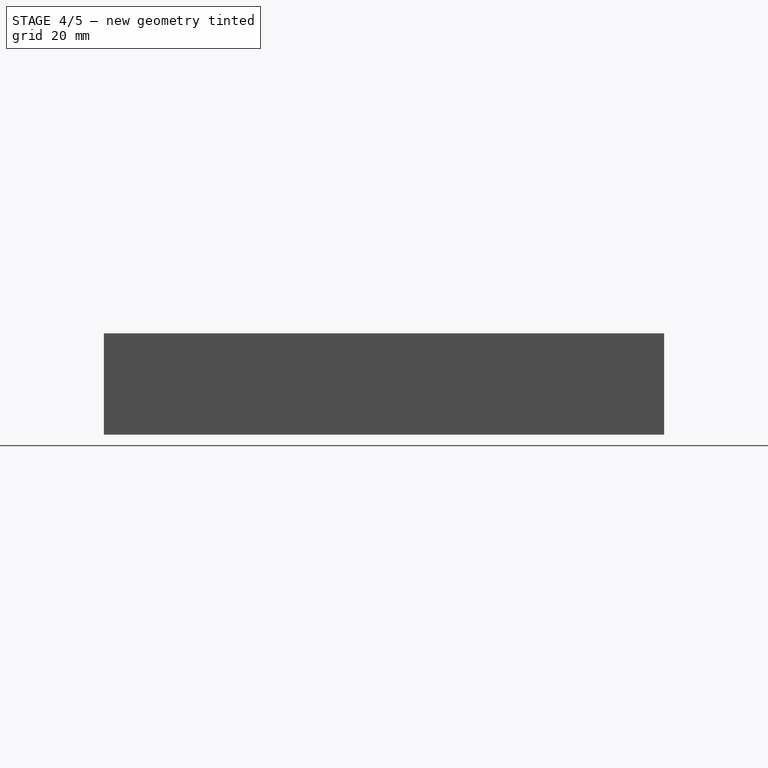
[diagram: stage 4 of 5 — right view after this stage's code; geometry added in this stage tinted green]
FEATURE [Sketcher::SketchObject] Sketch008  label="M2_5_HexNut"
  ExternalGeometry = -> [LinearPattern001]
  FullyConstrained = true
  MapMode = 5
  Placement = pos=(0,0,0) rot=(1,0,0;3.14159rad)
  Support = -> [LinearPattern001]
  sketch-geometry (14):
    g0: LineSegment StartX=-60.3257 StartY=-47.6 StartZ=0 EndX=-63.6743 EndY=-47.6 EndZ=0
    g1: LineSegment StartX=-63.6743 StartY=-47.6 StartZ=0 EndX=-65.3486 EndY=-50.5 EndZ=0
    g2: LineSegment StartX=-65.3486 StartY=-50.5 StartZ=0 EndX=-63.6743 EndY=-53.4 EndZ=0
    g3: LineSegment StartX=-63.6743 StartY=-53.4 StartZ=0 EndX=-60.3257 EndY=-53.4 EndZ=0
    g4: LineSegment StartX=-60.3257 StartY=-53.4 StartZ=0 EndX=-58.6514 EndY=-50.5 EndZ=0
    g5: LineSegment StartX=-58.6514 StartY=-50.5 StartZ=0 EndX=-60.3257 EndY=-47.6 EndZ=0
    g6: Circle CenterX=-62 CenterY=-50.5 CenterZ=0 NormalX=0 NormalY=0 NormalZ=1 AngleXU=0 Radius=3.34863
    g7: LineSegment StartX=-58.6514 StartY=-65.5 StartZ=0 EndX=-60.3257 EndY=-62.6 EndZ=0
    g8: LineSegment StartX=-60.3257 StartY=-62.6 StartZ=0 EndX=-63.6743 EndY=-62.6 EndZ=0
    g9: LineSegment StartX=-63.6743 StartY=-62.6 StartZ=0 EndX=-65.3486 EndY=-65.5 EndZ=0
    g10: LineSegment StartX=-65.3486 StartY=-65.5 StartZ=0 EndX=-63.6743 EndY=-68.4 EndZ=0
    g11: LineSegment StartX=-63.6743 StartY=-68.4 StartZ=0 EndX=-60.3257 EndY=-68.4 EndZ=0
    g12: LineSegment StartX=-60.3257 StartY=-68.4 StartZ=0 EndX=-58.6514 EndY=-65.5 EndZ=0
    g13: Circle CenterX=-62 CenterY=-65.5 CenterZ=0 NormalX=0 NormalY=0 NormalZ=1 AngleXU=0 Radius=3.34863
  constraints (32):
    c: Coincident(g0,g1)
    c: Coincident(g1,g2)
    c: Coincident(g2,g3)
    c: Coincident(g3,g4)
    c: Coincident(g4,g5)
    c: Coincident(g5,g0)
    c: Equal(g0, g1-g5) x5
    c: PointOnObject(g0,g6)
    c: PointOnObject(g1,g6)
    c: PointOnObject(g2,g6)
    c: PointOnObject(g3,g6)
    c: PointOnObject(g4,g6)
    c: PointOnObject(g5,g6)
    c: Coincident(g6,g-3)
    c: Coincident(g7,g8)
    c: Coincident(g8,g9)
    c: Coincident(g9,g10)
    c: Coincident(g10,g11)
    c: Coincident(g11,g12)
    c: Coincident(g12,g7)
    c: Equal(g7, g8-g12) x5
    c: PointOnObject(g7,g13)
    c: PointOnObject(g8,g13)
    c: PointOnObject(g9,g13)
    c: PointOnObject(g10,g13)
    c: PointOnObject(g11,g13)
    c: PointOnObject(g12,g13)
    c: Coincident(g13,g-4)
    c: DistanceY(g3,g0) = 5.8
    c: Horizontal(g1,g4)
    c: DistanceY(g11,g7) = 5.8
    c: Horizontal(g9,g7)
FEATURE [PartDesign::Pocket] Pocket006  label="PocketHexNut"
  BaseFeature = -> LinearPattern001
  Length = 2
  Length2 = 100
  Profile = -> Sketch008
  Type = 0
FEATURE [PartDesign::Pocket] Pocket007  label="PocketRPIConnectors"
  BaseFeature = -> Pocket006
  Length = 5
  Length2 = 100
  Profile = -> Sketch006
  Type = 2
FEATURE [Sketcher::SketchObject] Sketch009  label="TopHousingFlange"
  ExternalGeometry = -> [Pocket007]
  FullyConstrained = true
  MapMode = 5
  Placement = pos=(0,0,30) rot=(0,0,1;0rad)
  Support = -> [Pocket007]
  sketch-geometry (12):
    g0: ArcOfCircle CenterX=68 CenterY=83 CenterZ=0 NormalX=0 NormalY=0 NormalZ=1 AngleXU=0 Radius=13 StartAngle=3.14159 EndAngle=4.71239
    g1: LineSegment StartX=55 StartY=83 StartZ=0 EndX=68 EndY=83 EndZ=0
    g2: LineSegment StartX=68 StartY=83 StartZ=0 EndX=68 EndY=70 EndZ=0
    g3: ArcOfCircle CenterX=-68 CenterY=83 CenterZ=0 NormalX=0 NormalY=0 NormalZ=1 AngleXU=0 Radius=13 StartAngle=4.71239 EndAngle=6.28319
    g4: ArcOfCircle CenterX=-68 CenterY=-83 CenterZ=0 NormalX=0 NormalY=0 NormalZ=1 AngleXU=0 Radius=13 StartAngle=0 EndAngle=1.5708
    g5: ArcOfCircle CenterX=68 CenterY=-83 CenterZ=0 NormalX=0 NormalY=0 NormalZ=1 AngleXU=0 Radius=13 StartAngle=1.5708 EndAngle=3.14159
    g6: LineSegment StartX=-55 StartY=83 StartZ=0 EndX=-68 EndY=83 EndZ=0
    g7: LineSegment StartX=-68 StartY=83 StartZ=0 EndX=-68 EndY=70 EndZ=0
    g8: LineSegment StartX=-68 StartY=-70 StartZ=0 EndX=-68 EndY=-83 EndZ=0
    g9: LineSegment StartX=-68 StartY=-83 StartZ=0 EndX=-55 EndY=-83 EndZ=0
    g10: LineSegment StartX=68 StartY=-70 StartZ=0 EndX=68 EndY=-83 EndZ=0
    g11: LineSegment StartX=68 StartY=-83 StartZ=0 EndX=55 EndY=-83 EndZ=0
  constraints (32):
    c: Coincident(g0,g-6)
    c: PointOnObject(g0,g-5)
    c: PointOnObject(g0,g-6)
    c: Radius(g0) = 13
    c: Coincident(g1,g0)
    c: Coincident(g1,g0)
    c: Coincident(g2,g0)
    c: Coincident(g2,g0)
    c: Coincident(g3,g-7)
    c: PointOnObject(g3,g-5)
    c: PointOnObject(g3,g-7)
    c: Coincident(g4,g-8)
    c: PointOnObject(g4,g-7)
    c: PointOnObject(g4,g-8)
    c: Coincident(g5,g-8)
    c: PointOnObject(g5,g-6)
    c: PointOnObject(g5,g-8)
    c: Radius(g3) = 13
    c: Radius(g4) = 13
    c: Radius(g5) = 13
    c: Coincident(g6,g3)
    c: Coincident(g6,g3)
    c: Coincident(g7,g3)
    c: Coincident(g7,g3)
    c: Coincident(g8,g4)
    c: Coincident(g8,g4)
    c: Coincident(g9,g4)
    c: Coincident(g9,g4)
    c: Coincident(g10,g5)
    c: Coincident(g10,g5)
    c: Coincident(g11,g5)
    c: Coincident(g11,g5)
FEATURE [PartDesign::Pad] Pad001  label="PadFlange"
  BaseFeature = -> Pocket007
  Direction = (1,1,1)
  Length = 3
  Length2 = 100
  Profile = -> Sketch009
  Refine = true
  Reversed = true
  Type = 0
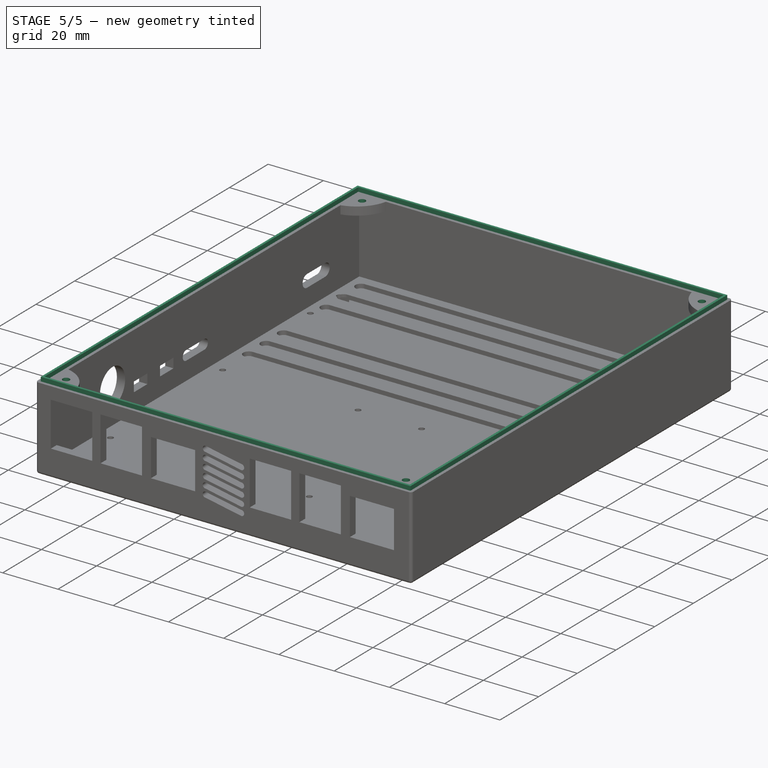
[diagram: stage 5 of 5 — iso view after this stage's code; geometry added in this stage tinted green]
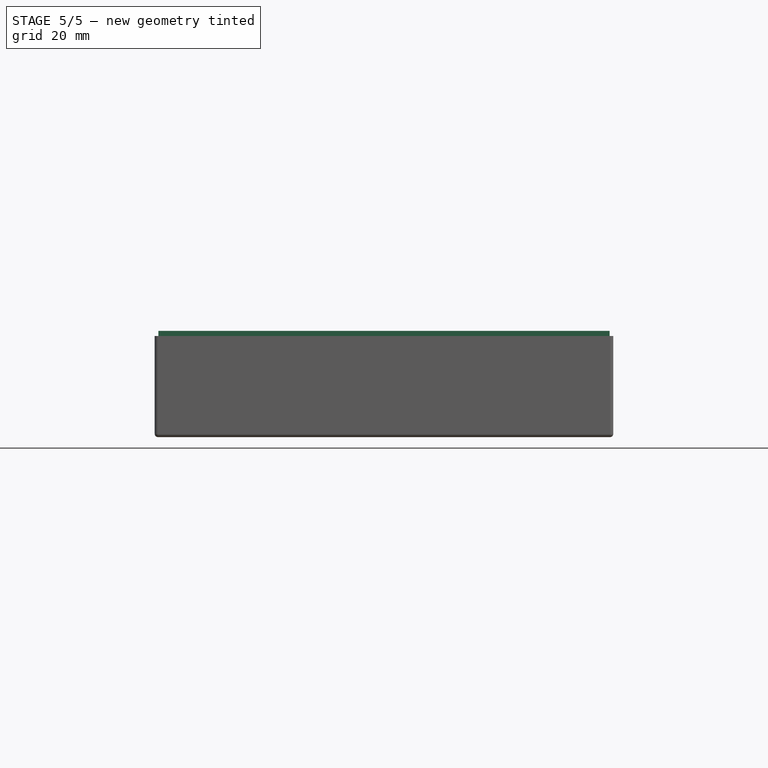
[diagram: stage 5 of 5 — front view after this stage's code; geometry added in this stage tinted green]
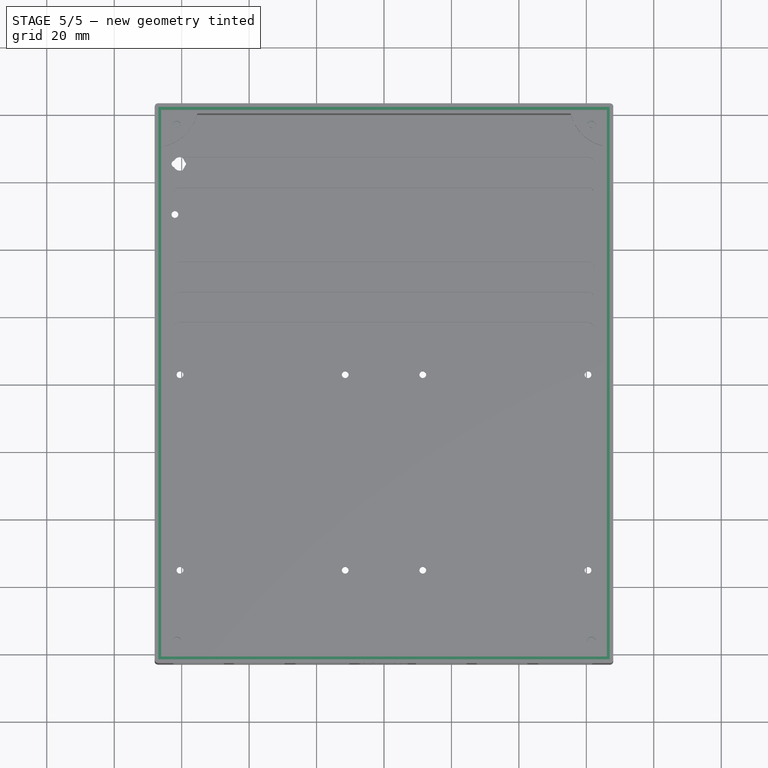
[diagram: stage 5 of 5 — top view after this stage's code; geometry added in this stage tinted green]
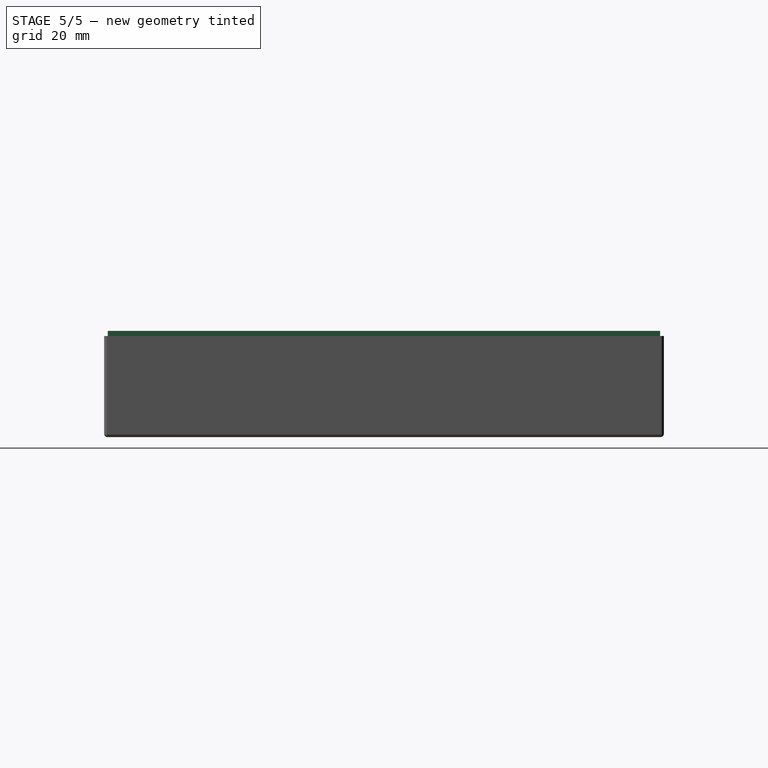
[diagram: stage 5 of 5 — right view after this stage's code; geometry added in this stage tinted green]
FEATURE [Sketcher::SketchObject] Sketch010  label="TopCoverMountHole"
  ExternalGeometry = -> [Pad001]
  FullyConstrained = true
  MapMode = 5
  Placement = pos=(0,0,30) rot=(0,0,1;0rad)
  Support = -> [Pad001]
  sketch-geometry (4):
    g0: Circle CenterX=61.5 CenterY=76.5 CenterZ=0 NormalX=0 NormalY=0 NormalZ=1 AngleXU=0 Radius=1.25
    g1: Circle CenterX=-61.5 CenterY=76.5 CenterZ=0 NormalX=0 NormalY=0 NormalZ=1 AngleXU=0 Radius=1.25
    g2: Circle CenterX=61.5 CenterY=-76.5 CenterZ=0 NormalX=0 NormalY=0 NormalZ=1 AngleXU=0 Radius=1.25
    g3: Circle CenterX=-61.5 CenterY=-76.5 CenterZ=0 NormalX=0 NormalY=0 NormalZ=1 AngleXU=0 Radius=1.25
  constraints (12):
    c: DistanceX(g0,g-3) = 6.5
    c: DistanceY(g0,g-3) = 6.5
    c: Radius(g0) = 1.25
    c: DistanceX(g-3,g1) = 6.5
    c: DistanceY(g1,g-3) = 6.5
    c: Radius(g1) = 1.25
    c: DistanceX(g2,g-4) = 6.5
    c: DistanceY(g-4,g2) = 6.5
    c: Radius(g2) = 1.25
    c: DistanceX(g-4,g3) = 6.5
    c: DistanceY(g-4,g3) = 6.5
    c: Radius(g3) = 1.25
FEATURE [PartDesign::Pocket] Pocket008  label="PocketTopMount"
  BaseFeature = -> Pad001
  Length = 3
  Length2 = 100
  Profile = -> Sketch010
  Type = 0
FEATURE [Sketcher::SketchObject] Sketch011  label="top_bottom_mating"
  ExternalGeometry = -> [Pocket008]
  FullyConstrained = true
  MapMode = 5
  Placement = pos=(0,0,30) rot=(0,0,1;0rad)
  Support = -> [Pocket008]
  sketch-geometry (8):
    g0: LineSegment StartX=-66.1 StartY=81.1 StartZ=0 EndX=66.1 EndY=81.1 EndZ=0
    g1: LineSegment StartX=66.1 StartY=81.1 StartZ=0 EndX=66.1 EndY=-81.1 EndZ=0
    g2: LineSegment StartX=66.1 StartY=-81.1 StartZ=0 EndX=-66.1 EndY=-81.1 EndZ=0
    g3: LineSegment StartX=-66.1 StartY=-81.1 StartZ=0 EndX=-66.1 EndY=81.1 EndZ=0
    g4: LineSegment StartX=-66.9 StartY=81.9 StartZ=0 EndX=66.9 EndY=81.9 EndZ=0
    g5: LineSegment StartX=66.9 StartY=81.9 StartZ=0 EndX=66.9 EndY=-81.9 EndZ=0
    g6: LineSegment StartX=66.9 StartY=-81.9 StartZ=0 EndX=-66.9 EndY=-81.9 EndZ=0
    g7: LineSegment StartX=-66.9 StartY=-81.9 StartZ=0 EndX=-66.9 EndY=81.9 EndZ=0
  constraints (24):
    c: Coincident(g0,g1)
    c: Coincident(g1,g2)
    c: Coincident(g2,g3)
    c: Coincident(g3,g0)
    c: Horizontal(g0)
    c: Horizontal(g2)
    c: Vertical(g1)
    c: Vertical(g3)
    c: Coincident(g4,g5)
    c: Coincident(g5,g6)
    c: Coincident(g6,g7)
    c: Coincident(g7,g4)
    c: Horizontal(g4)
    c: Horizontal(g6)
    c: Vertical(g5)
    c: Vertical(g7)
    c: DistanceX(g4,g-3) = 1.1
    c: DistanceY(g4,g-3) = 1.1
    c: DistanceY(g0,g4) = 0.8
    c: DistanceX(g0,g4) = 0.8
    c: DistanceX(g-3,g4) = 1.1
    c: DistanceX(g4,g0) = 0.8
    c: DistanceY(g-4,g6) = 1.1
    c: DistanceY(g6,g2) = 0.8
FEATURE [PartDesign::Pad] Pad002  label="PadMating"
  BaseFeature = -> Pocket008
  Direction = (1,1,1)
  Length = 1.5
  Length2 = 100
  Profile = -> Sketch011
  Type = 0
FEATURE [PartDesign::Fillet] Fillet
  Base = -> Pad002 [Edge402,Edge413,Edge416,Edge404,Edge369,Edge370,Edge372,Edge371]
  BaseFeature = -> Pad002
  Radius = 1
  SupportTransform = false
FEATURE [PartDesign::Body] Body
  Group = -> [Sketch,Sketch001,Pad,Pocket,Sketch002,Pocket001,Sketch003,Pocket002,Sketch004,Pocket003,Sketch005,Pocket004,LinearPattern,Sketch006,Sketch007,Pocket005,LinearPattern001,Sketch008,Pocket006,Pocket007,Sketch009,Pad001,Sketch010,Pocket008,Sketch011,Pad002,Fillet]
  Origin = -> Origin
  Tip = -> Fillet
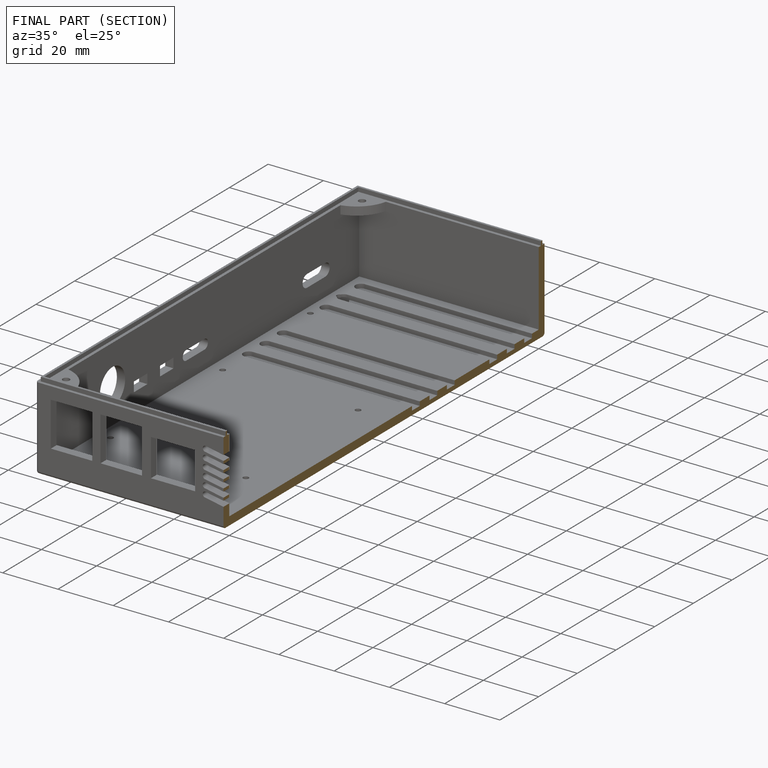
[diagram: finished part — half-section view (interior)]
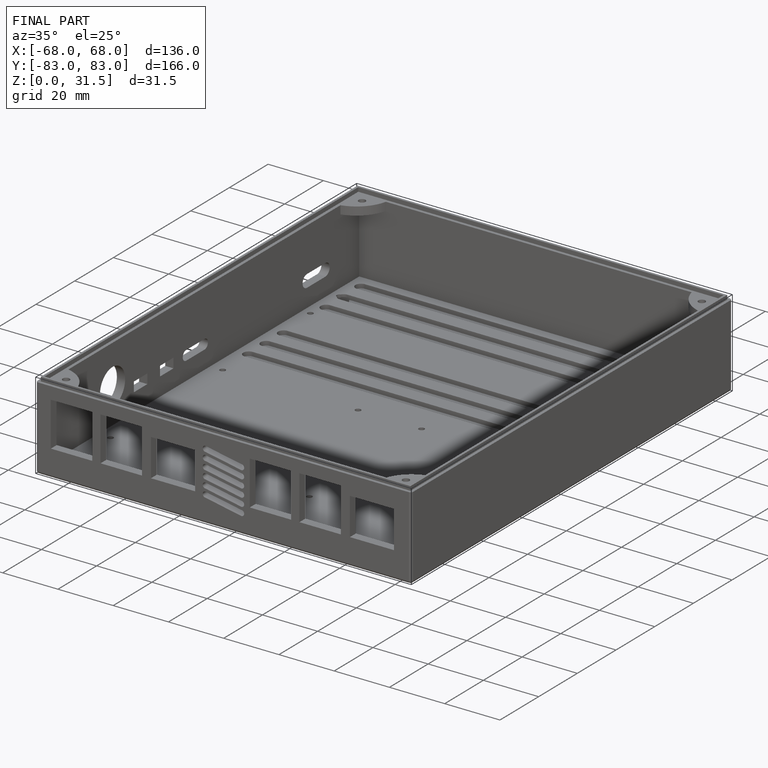
[diagram: finished part — iso view with bounding-box wireframe]
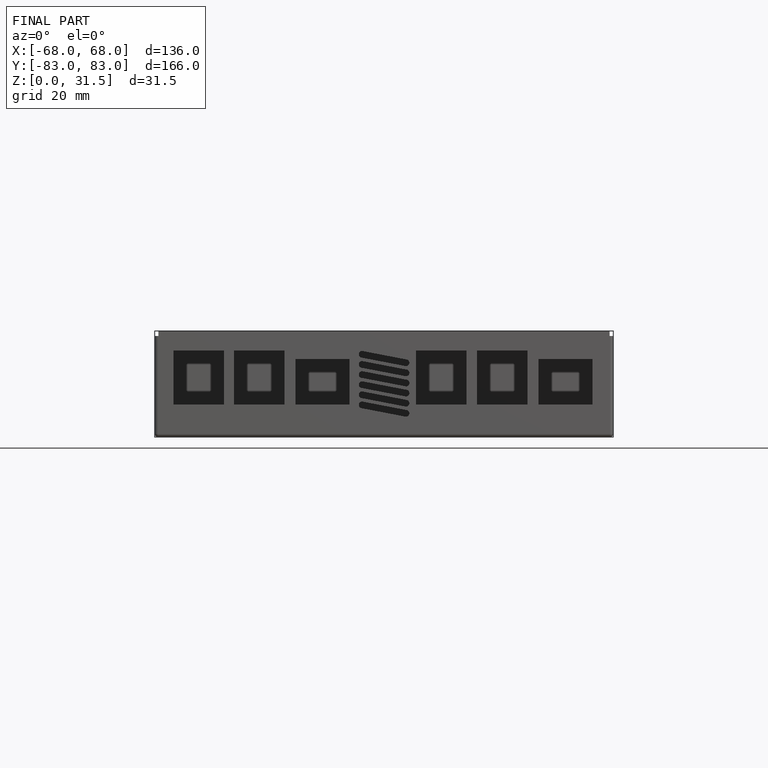
[diagram: finished part — front view with bounding-box wireframe]
